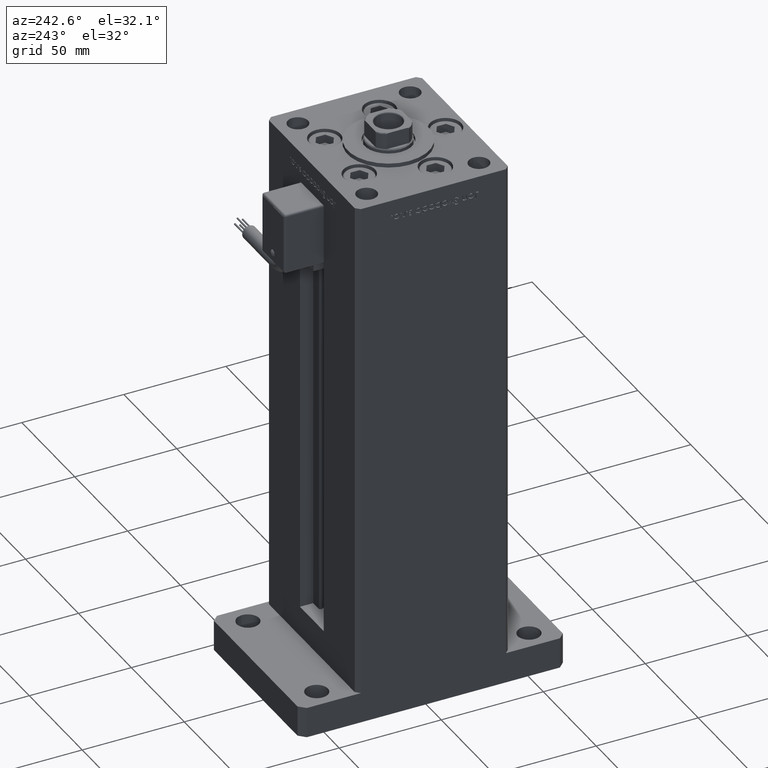
[diagram: clean part render]
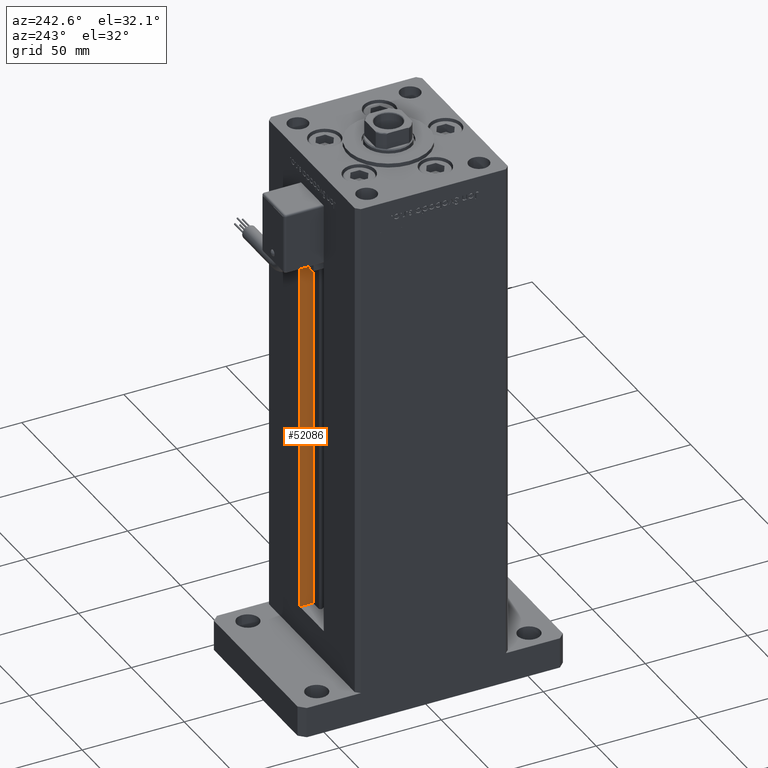
[diagram: same view with one face highlighted and labeled with its STEP entity id]
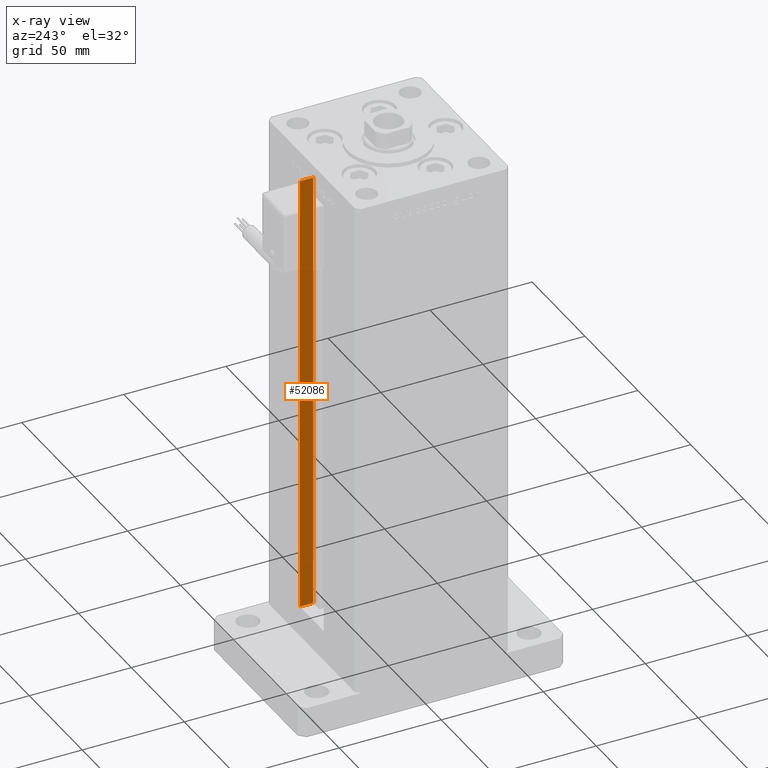
[diagram: x-ray of the same camera — body ghosted, the highlighted face saturated]
A machine part, auxiliary view. The second image highlights one B-rep face of the part: STEP entity #52086.
The next image is the same camera in x-ray: the body ghosted, the highlighted face saturated — about 0% of this face is hidden behind the body in this view.
In plain terms, the highlighted planar face has unit normal (1, 0, 0).
Its self-contained STEP definition (entity closure, byte-faithful):
#1271 = ORIENTED_EDGE ( 'NONE', *, *, #51636, .F. ) ;
#2079 = PLANE ( 'NONE',  #46325 ) ;
#2199 = LINE ( 'NONE', #2470, #33108 ) ;
#2470 = CARTESIAN_POINT ( 'NONE',  ( 11.25000000000000000, 30.99999999999999289, 0.000000000000000000 ) ) ;
#2616 = EDGE_LOOP ( 'NONE', ( #1271, #49653, #27137, #2786 ) ) ;
#2786 = ORIENTED_EDGE ( 'NONE', *, *, #16978, .F. ) ;
#6351 = FACE_OUTER_BOUND ( 'NONE', #2616, .T. ) ;
#6982 = DIRECTION ( 'NONE',  ( -0.000000000000000000, -0.000000000000000000, 1.000000000000000000 ) ) ;
#8005 = DIRECTION ( 'NONE',  ( 0.000000000000000000, 1.000000000000000000, 0.000000000000000000 ) ) ;
#8605 = DIRECTION ( 'NONE',  ( 1.000000000000000000, -0.000000000000000000, 0.000000000000000000 ) ) ;
#9286 = CARTESIAN_POINT ( 'NONE',  ( 11.25000000000000000, 37.50000000000000000, 0.000000000000000000 ) ) ;
#12872 = DIRECTION ( 'NONE',  ( 0.000000000000000000, 0.000000000000000000, -1.000000000000000000 ) ) ;
#14104 = VERTEX_POINT ( 'NONE', #53533 ) ;
#16797 = EDGE_CURVE ( 'NONE', #44685, #14104, #2199, .T. ) ;
#16978 = EDGE_CURVE ( 'NONE', #21138, #14104, #26054, .T. ) ;
#21138 = VERTEX_POINT ( 'NONE', #50933 ) ;
#21527 = DIRECTION ( 'NONE',  ( -0.000000000000000000, -1.000000000000000000, 0.000000000000000000 ) ) ;
#21788 = VECTOR ( 'NONE', #6982, 1000.000000000000000 ) ;
#25784 = CARTESIAN_POINT ( 'NONE',  ( 11.25000000000000000, 0.000000000000000000, 218.5000000000000000 ) ) ;
#26054 = LINE ( 'NONE', #25784, #46731 ) ;
#27137 = ORIENTED_EDGE ( 'NONE', *, *, #16797, .T. ) ;
#30204 = VECTOR ( 'NONE', #8005, 1000.000000000000000 ) ;
#32082 = DIRECTION ( 'NONE',  ( -0.000000000000000000, -0.000000000000000000, 1.000000000000000000 ) ) ;
#33108 = VECTOR ( 'NONE', #32082, 1000.000000000000000 ) ;
#36516 = CARTESIAN_POINT ( 'NONE',  ( 11.25000000000000000, 30.99999999999999289, 0.000000000000000000 ) ) ;
#36685 = EDGE_CURVE ( 'NONE', #44685, #51523, #39268, .T. ) ;
#39268 = LINE ( 'NONE', #47262, #30204 ) ;
#44685 = VERTEX_POINT ( 'NONE', #36516 ) ;
#45981 = LINE ( 'NONE', #53946, #21788 ) ;
#46325 = AXIS2_PLACEMENT_3D ( 'NONE', #50736, #8605, #12872 ) ;
#46731 = VECTOR ( 'NONE', #21527, 1000.000000000000000 ) ;
#47262 = CARTESIAN_POINT ( 'NONE',  ( 11.25000000000000000, 30.99999999999999289, 0.000000000000000000 ) ) ;
#49653 = ORIENTED_EDGE ( 'NONE', *, *, #36685, .F. ) ;
#50736 = CARTESIAN_POINT ( 'NONE',  ( 11.25000000000000000, 30.99999999999999289, 0.000000000000000000 ) ) ;
#50933 = CARTESIAN_POINT ( 'NONE',  ( 11.24999999999999289, 37.50000000000000000, 218.5000000000000000 ) ) ;
#51523 = VERTEX_POINT ( 'NONE', #9286 ) ;
#51636 = EDGE_CURVE ( 'NONE', #51523, #21138, #45981, .T. ) ;
#52086 = ADVANCED_FACE ( 'NONE', ( #6351 ), #2079, .F. ) ;
#53533 = CARTESIAN_POINT ( 'NONE',  ( 11.25000000000000000, 30.99999999999999289, 218.5000000000000000 ) ) ;
#53946 = CARTESIAN_POINT ( 'NONE',  ( 11.25000000000000000, 37.50000000000000000, 0.000000000000000000 ) ) ;